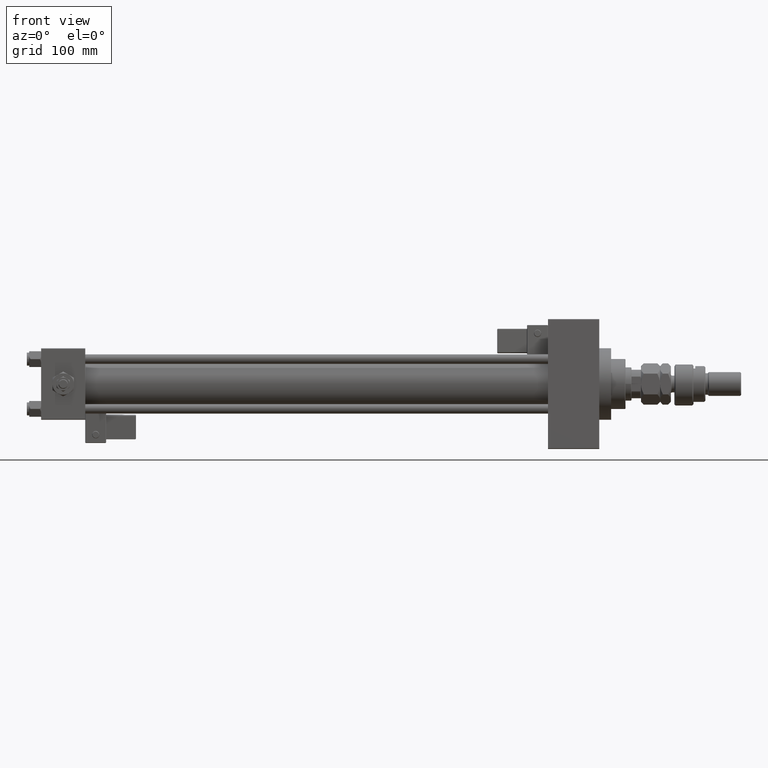
[diagram: clean part render]
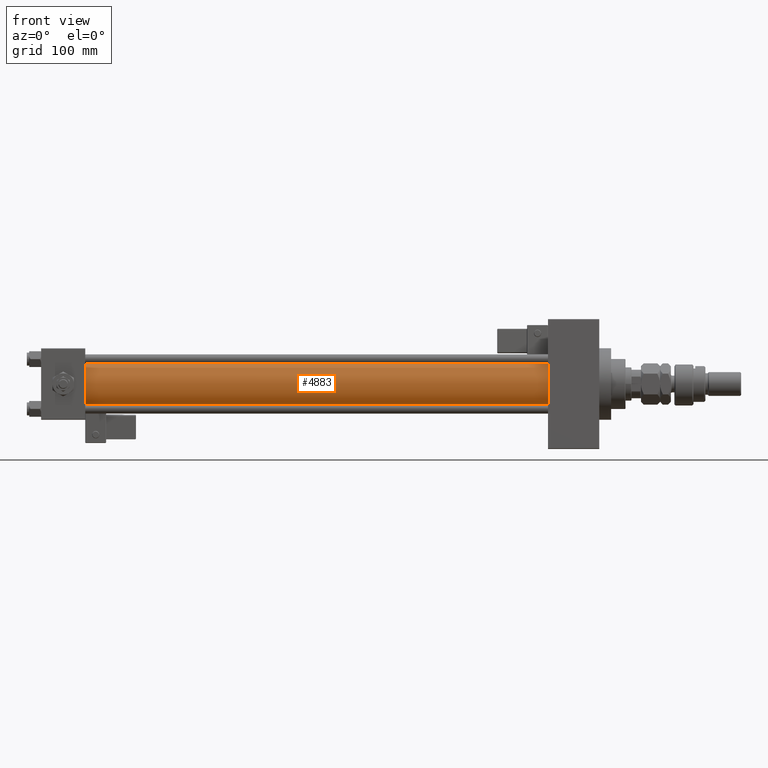
[diagram: same view with one face highlighted and labeled with its STEP entity id]
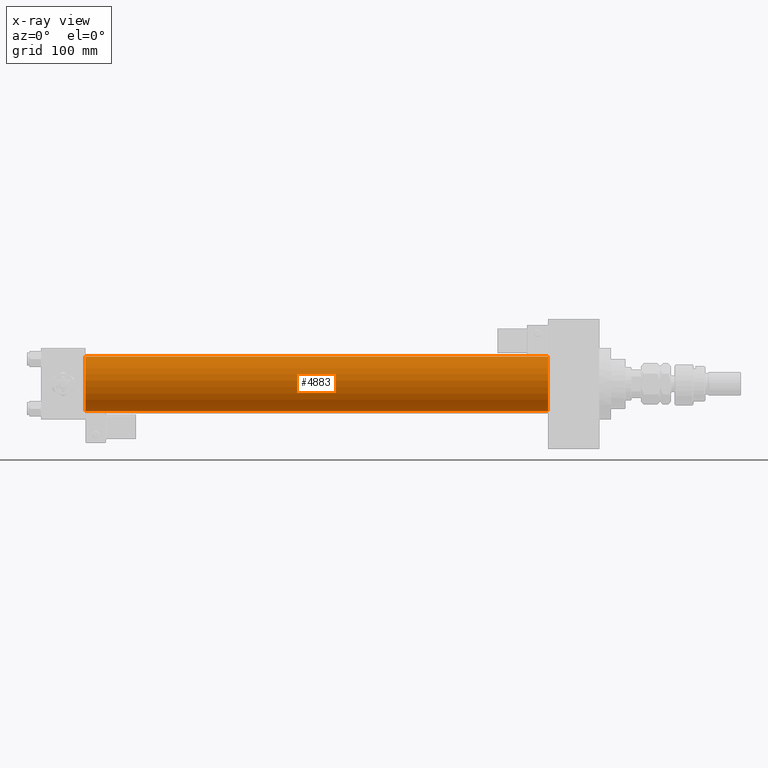
[diagram: x-ray of the same camera — body ghosted, the highlighted face saturated]
A machine part, front view. The second image highlights one B-rep face of the part: STEP entity #4883.
The next image is the same camera in x-ray: the body ghosted, the highlighted face saturated — about 0% of this face is hidden behind the body in this view.
In plain terms, the highlighted cylindrical surface (edge-blend (fillet) strip) has radius 23 mm, axis along (-1, -0, -0).
Its self-contained STEP definition (entity closure, byte-faithful):
#1558 = EDGE_CURVE ( 'NONE', #21350, #4789, #49617, .T. ) ;
#2726 = LINE ( 'NONE', #52735, #32716 ) ;
#3685 = AXIS2_PLACEMENT_3D ( 'NONE', #20226, #11741, #40981 ) ;
#4789 = VERTEX_POINT ( 'NONE', #43250 ) ;
#4883 = ADVANCED_FACE ( 'NONE', ( #22757 ), #18108, .T. ) ;
#7077 = AXIS2_PLACEMENT_3D ( 'NONE', #35317, #44055, #52241 ) ;
#8075 = DIRECTION ( 'NONE',  ( -1.000000000000000000, -0.000000000000000000, -0.000000000000000000 ) ) ;
#9950 = CARTESIAN_POINT ( 'NONE',  ( 425.0000000000000000, 2.146024240737012665E-16, -23.00000000000000000 ) ) ;
#11697 = ORIENTED_EDGE ( 'NONE', *, *, #27651, .F. ) ;
#11741 = DIRECTION ( 'NONE',  ( 1.000000000000000000, -0.000000000000000000, 0.000000000000000000 ) ) ;
#12804 = CIRCLE ( 'NONE', #45103, 23.00000000000000000 ) ;
#16067 = EDGE_CURVE ( 'NONE', #40603, #4789, #50814, .T. ) ;
#18108 = CYLINDRICAL_SURFACE ( 'NONE', #7077, 23.00000000000000000 ) ;
#18961 = CARTESIAN_POINT ( 'NONE',  ( 425.0000000000000000, -2.602085213965210642E-15, 23.00000000000000000 ) ) ;
#20226 = CARTESIAN_POINT ( 'NONE',  ( 36.99999999999997868, -2.602085213965210642E-15, 0.000000000000000000 ) ) ;
#20619 = EDGE_LOOP ( 'NONE', ( #46758, #11697, #31801, #35948 ) ) ;
#21350 = VERTEX_POINT ( 'NONE', #9950 ) ;
#22631 = VECTOR ( 'NONE', #8075, 1000.000000000000000 ) ;
#22757 = FACE_OUTER_BOUND ( 'NONE', #20619, .T. ) ;
#22933 = EDGE_CURVE ( 'NONE', #39434, #40603, #2726, .T. ) ;
#25682 = DIRECTION ( 'NONE',  ( 1.000000000000000000, 0.000000000000000000, 0.000000000000000000 ) ) ;
#27651 = EDGE_CURVE ( 'NONE', #39434, #21350, #12804, .T. ) ;
#31801 = ORIENTED_EDGE ( 'NONE', *, *, #22933, .T. ) ;
#32716 = VECTOR ( 'NONE', #48898, 1000.000000000000000 ) ;
#34305 = CARTESIAN_POINT ( 'NONE',  ( 36.99999999999997868, -2.602085213965210642E-15, 23.00000000000000000 ) ) ;
#35317 = CARTESIAN_POINT ( 'NONE',  ( 425.0000000000000000, -2.602085213965210642E-15, 0.000000000000000000 ) ) ;
#35948 = ORIENTED_EDGE ( 'NONE', *, *, #16067, .T. ) ;
#39434 = VERTEX_POINT ( 'NONE', #18961 ) ;
#40603 = VERTEX_POINT ( 'NONE', #34305 ) ;
#40981 = DIRECTION ( 'NONE',  ( 0.000000000000000000, 0.000000000000000000, 1.000000000000000000 ) ) ;
#41808 = CARTESIAN_POINT ( 'NONE',  ( 425.0000000000000000, -2.602085213965210642E-15, 0.000000000000000000 ) ) ;
#43250 = CARTESIAN_POINT ( 'NONE',  ( 36.99999999999997868, 2.146024240737012665E-16, -23.00000000000000000 ) ) ;
#44055 = DIRECTION ( 'NONE',  ( -1.000000000000000000, -0.000000000000000000, -0.000000000000000000 ) ) ;
#44989 = CARTESIAN_POINT ( 'NONE',  ( 425.0000000000000000, 2.146024240737012665E-16, -23.00000000000000000 ) ) ;
#45103 = AXIS2_PLACEMENT_3D ( 'NONE', #41808, #25682, #46441 ) ;
#46441 = DIRECTION ( 'NONE',  ( 0.000000000000000000, 0.000000000000000000, -1.000000000000000000 ) ) ;
#46758 = ORIENTED_EDGE ( 'NONE', *, *, #1558, .F. ) ;
#48898 = DIRECTION ( 'NONE',  ( -1.000000000000000000, -0.000000000000000000, -0.000000000000000000 ) ) ;
#49617 = LINE ( 'NONE', #44989, #22631 ) ;
#50814 = CIRCLE ( 'NONE', #3685, 23.00000000000000000 ) ;
#52241 = DIRECTION ( 'NONE',  ( 0.000000000000000000, 0.000000000000000000, 1.000000000000000000 ) ) ;
#52735 = CARTESIAN_POINT ( 'NONE',  ( 425.0000000000000000, -2.602085213965210642E-15, 23.00000000000000000 ) ) ;